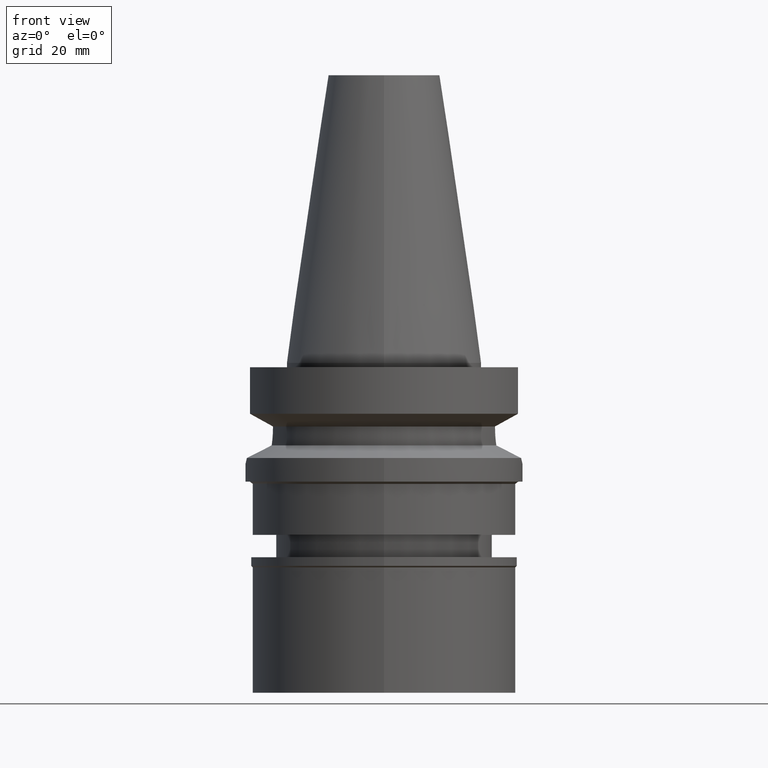
[diagram: clean part render]
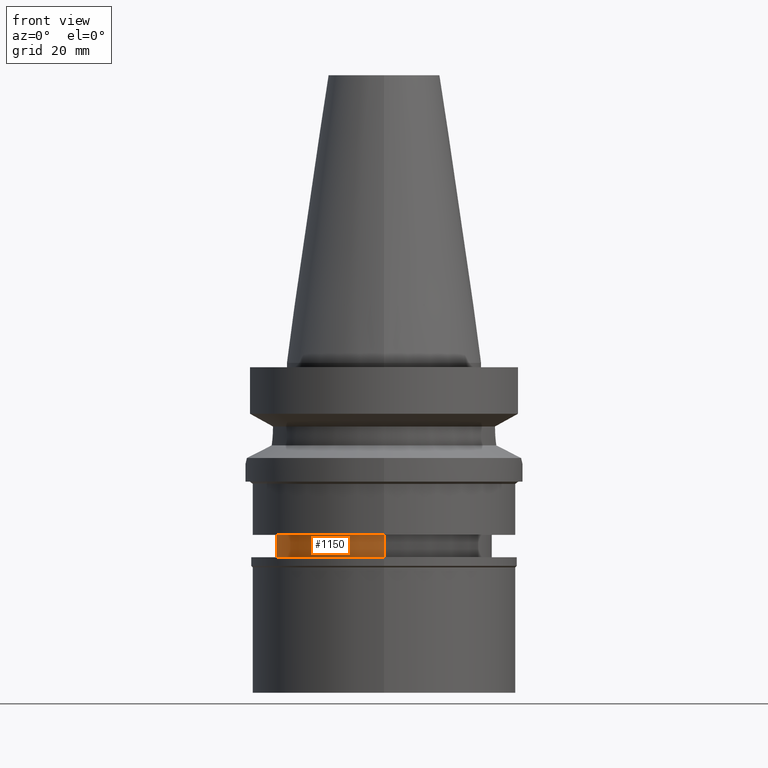
[diagram: same view with one face highlighted and labeled with its STEP entity id]
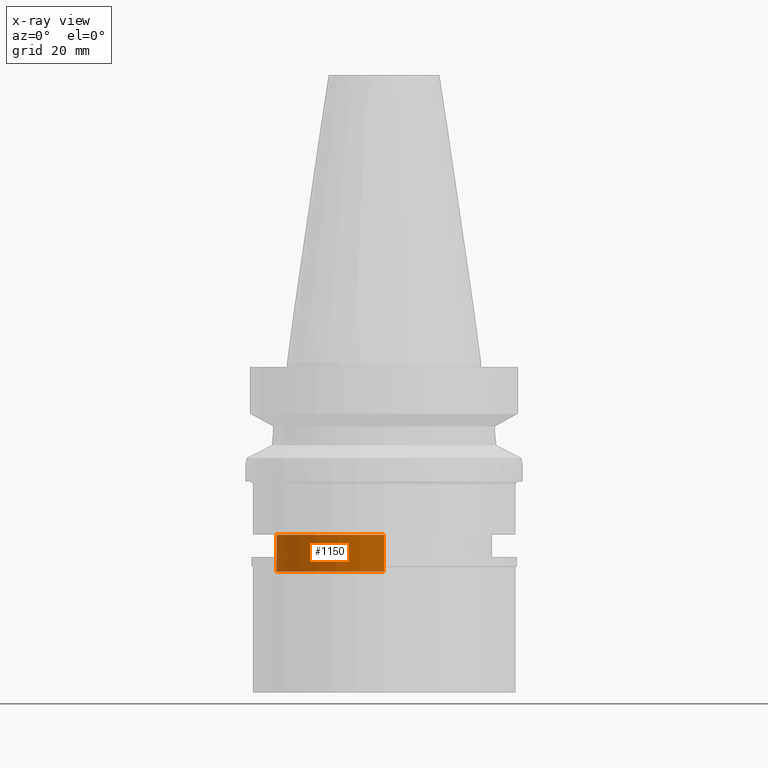
[diagram: x-ray of the same camera — body ghosted, the highlighted face saturated]
A machine part, front view. The second image highlights one B-rep face of the part: STEP entity #1150.
The next image is the same camera in x-ray: the body ghosted, the highlighted face saturated — about 0% of this face is hidden behind the body in this view.
In plain terms, the highlighted cylindrical surface (partial cylindrical patch) has radius 24.5 mm, axis along (0, 0, -1).
Its self-contained STEP definition (entity closure, byte-faithful):
#53 = FACE_OUTER_BOUND ( 'NONE', #2133, .T. ) ;
#104 = VECTOR ( 'NONE', #1768, 1000.000000000000000 ) ;
#201 = AXIS2_PLACEMENT_3D ( 'NONE', #1238, #2597, #2574 ) ;
#207 = ORIENTED_EDGE ( 'NONE', *, *, #945, .T. ) ;
#423 = CARTESIAN_POINT ( 'NONE',  ( 0.0000000000000000000, 0.0000000000000000000, -47.50000000000000000 ) ) ;
#488 = VERTEX_POINT ( 'NONE', #1515 ) ;
#499 = CARTESIAN_POINT ( 'NONE',  ( 0.0000000000000000000, 0.0000000000000000000, -39.10000000000000142 ) ) ;
#589 = CARTESIAN_POINT ( 'NONE',  ( 0.0000000000000000000, -24.50000000000000000, -39.10000000000000142 ) ) ;
#619 = LINE ( 'NONE', #2884, #897 ) ;
#666 = LINE ( 'NONE', #1085, #104 ) ;
#849 = VERTEX_POINT ( 'NONE', #1112 ) ;
#888 = ORIENTED_EDGE ( 'NONE', *, *, #1615, .F. ) ;
#897 = VECTOR ( 'NONE', #1955, 1000.000000000000000 ) ;
#945 = EDGE_CURVE ( 'NONE', #2333, #1359, #1654, .T. ) ;
#1053 = DIRECTION ( 'NONE',  ( 0.0000000000000000000, 0.0000000000000000000, 1.000000000000000000 ) ) ;
#1085 = CARTESIAN_POINT ( 'NONE',  ( 0.0000000000000000000, -24.50000000000000000, -39.10000000000000142 ) ) ;
#1112 = CARTESIAN_POINT ( 'NONE',  ( 0.0000000000000000000, -24.50000000000000000, -47.50000000000000000 ) ) ;
#1150 = ADVANCED_FACE ( 'NONE', ( #53 ), #1638, .T. ) ;
#1238 = CARTESIAN_POINT ( 'NONE',  ( 0.0000000000000000000, 0.0000000000000000000, 0.0000000000000000000 ) ) ;
#1359 = VERTEX_POINT ( 'NONE', #1837 ) ;
#1515 = CARTESIAN_POINT ( 'NONE',  ( 0.0000000000000000000, 24.50000000000000000, -47.50000000000000000 ) ) ;
#1581 = DIRECTION ( 'NONE',  ( 0.0000000000000000000, -1.000000000000000000, 0.0000000000000000000 ) ) ;
#1615 = EDGE_CURVE ( 'NONE', #2333, #849, #666, .T. ) ;
#1638 = CYLINDRICAL_SURFACE ( 'NONE', #201, 24.50000000000000000 ) ;
#1654 = CIRCLE ( 'NONE', #2144, 24.50000000000000000 ) ;
#1768 = DIRECTION ( 'NONE',  ( 0.0000000000000000000, 0.0000000000000000000, -1.000000000000000000 ) ) ;
#1784 = ORIENTED_EDGE ( 'NONE', *, *, #2908, .T. ) ;
#1837 = CARTESIAN_POINT ( 'NONE',  ( 0.0000000000000000000, 24.50000000000000000, -39.10000000000000142 ) ) ;
#1955 = DIRECTION ( 'NONE',  ( 0.0000000000000000000, 0.0000000000000000000, -1.000000000000000000 ) ) ;
#2133 = EDGE_LOOP ( 'NONE', ( #2731, #888, #207, #1784 ) ) ;
#2134 = AXIS2_PLACEMENT_3D ( 'NONE', #423, #1053, #2424 ) ;
#2144 = AXIS2_PLACEMENT_3D ( 'NONE', #499, #2953, #1581 ) ;
#2235 = EDGE_CURVE ( 'NONE', #488, #849, #2818, .T. ) ;
#2333 = VERTEX_POINT ( 'NONE', #589 ) ;
#2424 = DIRECTION ( 'NONE',  ( 0.0000000000000000000, 1.000000000000000000, 0.0000000000000000000 ) ) ;
#2574 = DIRECTION ( 'NONE',  ( 0.0000000000000000000, -1.000000000000000000, 0.0000000000000000000 ) ) ;
#2597 = DIRECTION ( 'NONE',  ( 0.0000000000000000000, 0.0000000000000000000, -1.000000000000000000 ) ) ;
#2731 = ORIENTED_EDGE ( 'NONE', *, *, #2235, .T. ) ;
#2818 = CIRCLE ( 'NONE', #2134, 24.50000000000000000 ) ;
#2884 = CARTESIAN_POINT ( 'NONE',  ( 0.0000000000000000000, 24.50000000000000000, -39.10000000000000142 ) ) ;
#2908 = EDGE_CURVE ( 'NONE', #1359, #488, #619, .T. ) ;
#2953 = DIRECTION ( 'NONE',  ( 0.0000000000000000000, 0.0000000000000000000, -1.000000000000000000 ) ) ;